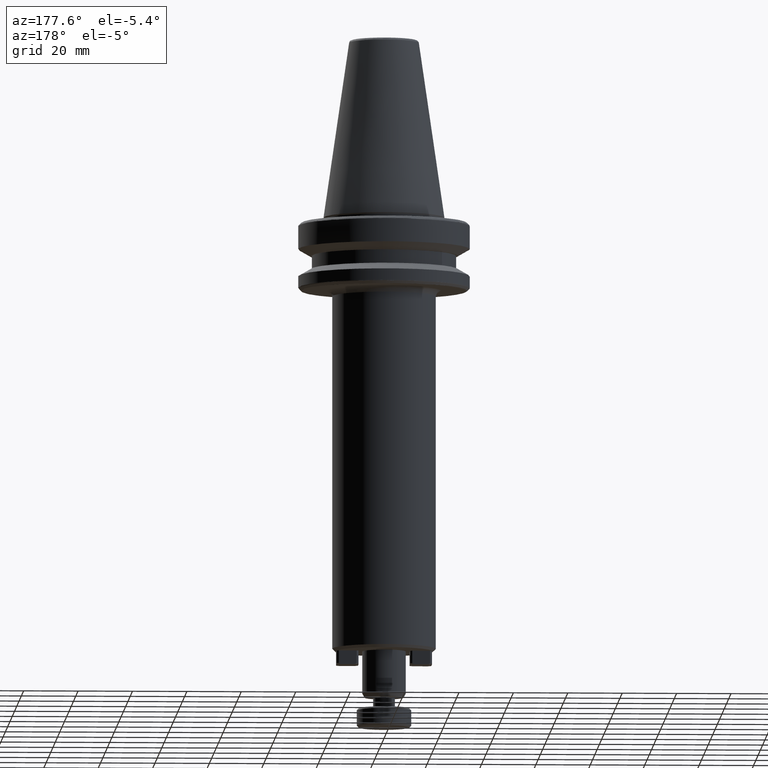
[diagram: clean part render]
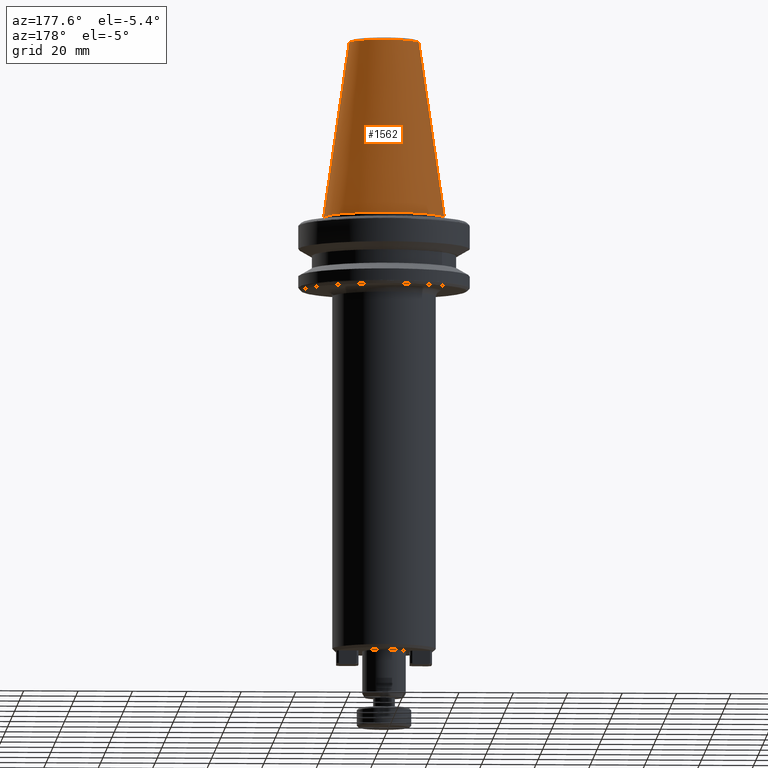
[diagram: same view with one face highlighted and labeled with its STEP entity id]
A machine part, auxiliary view. The second image highlights one B-rep face of the part: STEP entity #1562.
In plain terms, the highlighted conical surface has half-angle 8.297 deg.
Its self-contained STEP definition (entity closure, byte-faithful):
#198 = DIRECTION ( 'NONE',  ( 1.000000000000000000, 0.0000000000000000000, 9.822541477422708000E-017 ) ) ;
#386 = CARTESIAN_POINT ( 'NONE',  ( 0.0000000000000000000, 0.0000000000000000000, 0.0000000000000000000 ) ) ;
#410 = CARTESIAN_POINT ( 'NONE',  ( 22.22500000000000100, 2.721777511104992800E-015, 0.0000000000000000000 ) ) ;
#499 = VERTEX_POINT ( 'NONE', #2984 ) ;
#527 = AXIS2_PLACEMENT_3D ( 'NONE', #386, #2971, #198 ) ;
#934 = LINE ( 'NONE', #3402, #3086 ) ;
#954 = AXIS2_PLACEMENT_3D ( 'NONE', #2725, #2724, #2719 ) ;
#974 = CARTESIAN_POINT ( 'NONE',  ( 12.81219950706225000, 2.145409711370550300E-015, 64.54430822726730800 ) ) ;
#1003 = CONICAL_SURFACE ( 'NONE', #3507, 22.22500000000000500, 0.1448138465474190200 ) ;
#1090 = FACE_OUTER_BOUND ( 'NONE', #2343, .T. ) ;
#1172 = ORIENTED_EDGE ( 'NONE', *, *, #1287, .T. ) ;
#1189 = EDGE_CURVE ( 'NONE', #2077, #3500, #934, .T. ) ;
#1287 = EDGE_CURVE ( 'NONE', #1780, #2077, #3656, .T. ) ;
#1309 = CIRCLE ( 'NONE', #527, 22.22500000000000500 ) ;
#1454 = CARTESIAN_POINT ( 'NONE',  ( -12.81219950706225000, 0.0000000000000000000, 64.54430822726730800 ) ) ;
#1562 = ADVANCED_FACE ( 'NONE', ( #1090 ), #1003, .T. ) ;
#1567 = DIRECTION ( 'NONE',  ( -0.1443082272673070200, 0.0000000000000000000, -0.9895327864921743500 ) ) ;
#1579 = CARTESIAN_POINT ( 'NONE',  ( -22.22500000000000500, 0.0000000000000000000, -2.775557561562891400E-014 ) ) ;
#1684 = EDGE_CURVE ( 'NONE', #1780, #499, #2964, .T. ) ;
#1774 = CARTESIAN_POINT ( 'NONE',  ( 0.0000000000000000000, 0.0000000000000000000, -2.775557561562891400E-014 ) ) ;
#1776 = DIRECTION ( 'NONE',  ( 0.0000000000000000000, 0.0000000000000000000, -1.000000000000000000 ) ) ;
#1780 = VERTEX_POINT ( 'NONE', #1454 ) ;
#1785 = DIRECTION ( 'NONE',  ( -1.000000000000000000, 0.0000000000000000000, 0.0000000000000000000 ) ) ;
#2077 = VERTEX_POINT ( 'NONE', #974 ) ;
#2243 = ORIENTED_EDGE ( 'NONE', *, *, #1684, .F. ) ;
#2343 = EDGE_LOOP ( 'NONE', ( #1172, #3141, #3573, #2243 ) ) ;
#2719 = DIRECTION ( 'NONE',  ( -1.000000000000000000, 0.0000000000000000000, 0.0000000000000000000 ) ) ;
#2724 = DIRECTION ( 'NONE',  ( 0.0000000000000000000, 0.0000000000000000000, -1.000000000000000000 ) ) ;
#2725 = CARTESIAN_POINT ( 'NONE',  ( 0.0000000000000000000, 0.0000000000000000000, 64.54430822726730800 ) ) ;
#2964 = LINE ( 'NONE', #1579, #3699 ) ;
#2971 = DIRECTION ( 'NONE',  ( -0.0000000000000000000, -0.0000000000000000000, -1.000000000000000000 ) ) ;
#2984 = CARTESIAN_POINT ( 'NONE',  ( -22.22500000000000100, 0.0000000000000000000, 0.0000000000000000000 ) ) ;
#3078 = EDGE_CURVE ( 'NONE', #499, #3500, #1309, .T. ) ;
#3086 = VECTOR ( 'NONE', #3396, 1000.000000000000000 ) ;
#3141 = ORIENTED_EDGE ( 'NONE', *, *, #1189, .T. ) ;
#3396 = DIRECTION ( 'NONE',  ( 0.1443082272673070200, 1.767266086135363300E-017, -0.9895327864921743500 ) ) ;
#3402 = CARTESIAN_POINT ( 'NONE',  ( 22.22500000000000500, 2.721777511104993200E-015, -2.775557561562891400E-014 ) ) ;
#3500 = VERTEX_POINT ( 'NONE', #410 ) ;
#3507 = AXIS2_PLACEMENT_3D ( 'NONE', #1774, #1776, #1785 ) ;
#3573 = ORIENTED_EDGE ( 'NONE', *, *, #3078, .F. ) ;
#3656 = CIRCLE ( 'NONE', #954, 12.81219950706225000 ) ;
#3699 = VECTOR ( 'NONE', #1567, 1000.000000000000000 ) ;